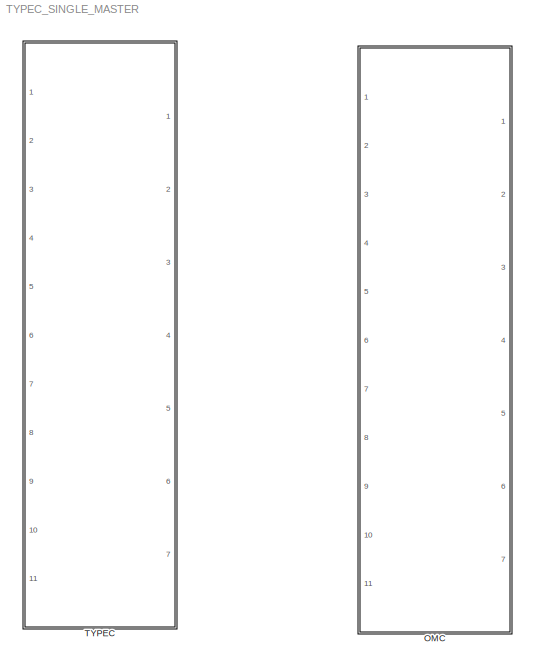
MODEL TYPEC_SINGLE_MASTER
KIND library
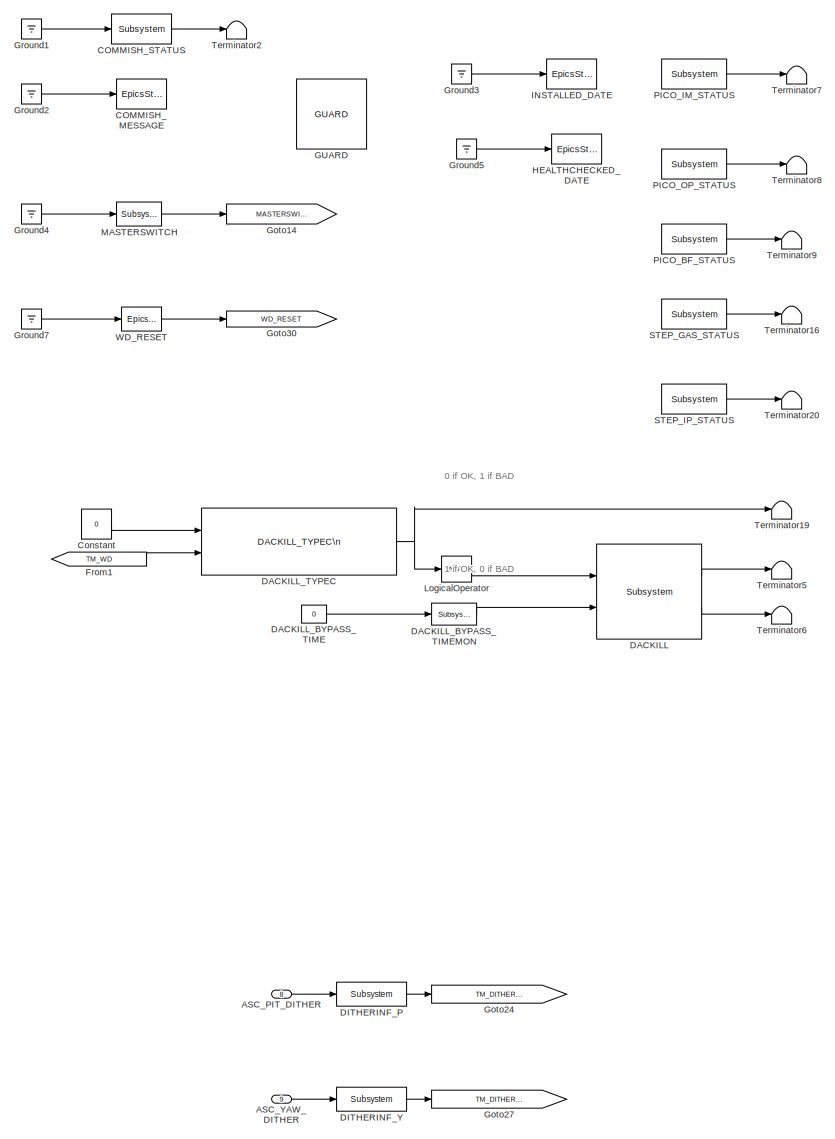
[diagram: OMC - part 1/2, right side, full height]
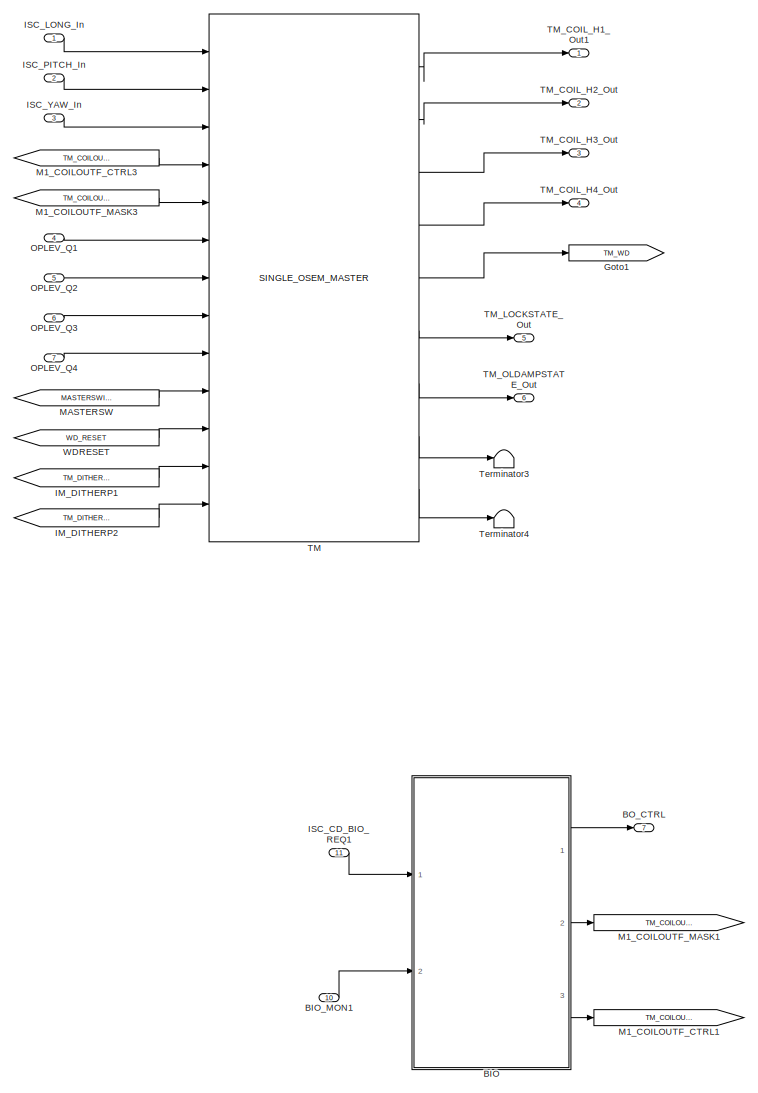
[diagram: OMC - part 2/2, left side, full height]
BLOCK [SubSystem] OMC
  AttributesFormatString = %<Description>
  Description = TYPEC SINGLE MASTER
  Ports = [11, 7]
  RequestExecContextInheritance = off
  SID = 120
  Variant = off
BLOCK [Inport] OMC/ASC_PIT_DITHER
  IconDisplay = Port number
  Port = 8
  SID = 128
BLOCK [Inport] OMC/ASC_YAW_DITHER
  IconDisplay = Port number
  Port = 9
  SID = 129
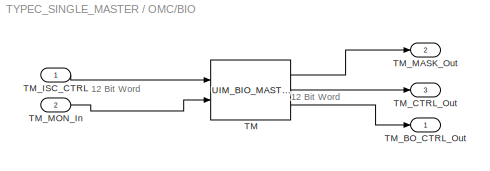
BLOCK [SubSystem] OMC/BIO
  Ports = [2, 3]
  RequestExecContextInheritance = off
  SID = 132
  Variant = off
BLOCK [Reference] OMC/BIO/TM  REF=STATE_BIO_MASTER/UIM_BIO_MASTER
  Ports = [2, 3]
  SID = 135
  SourceBlock = STATE_BIO_MASTER/UIM_BIO_MASTER
  SourceType = SubSystem
BLOCK [Outport] OMC/BIO/TM_BO_CTRL_Out
  IconDisplay = Port number
  SID = 136
BLOCK [Outport] OMC/BIO/TM_CTRL_Out
  IconDisplay = Port number
  Port = 3
  SID = 138
BLOCK [Inport] OMC/BIO/TM_ISC_CTRL
  IconDisplay = Port number
  SID = 133
BLOCK [Outport] OMC/BIO/TM_MASK_Out
  IconDisplay = Port number
  Port = 2
  SID = 137
BLOCK [Inport] OMC/BIO/TM_MON_In
  IconDisplay = Port number
  Port = 2
  SID = 134
BLOCK [Inport] OMC/BIO_MON1
  IconDisplay = Port number
  Port = 10
  SID = 130
BLOCK [Outport] OMC/BO_CTRL
  IconDisplay = Port number
  Port = 7
  SID = 199
BLOCK [Reference] OMC/COMMISH_MESSAGE  REF=cdsEpicsStringIn/EpicsStringIn
  AttributesFormatString = %<Tag>
  Description = cdsEpicsStringIn
  Ports = [1]
  SID = 141
  SourceBlock = cdsEpicsStringIn/EpicsStringIn
  SourceType = SubSystem
  Tag = cdsEpicsStringIn
BLOCK [Reference] OMC/COMMISH_STATUS  REF=cdsEpicsBinIn/Subsystem
  AttributesFormatString = %<Tag>
  Description = Purpose:                                                                            \nCreate an EPICS binary (0 or 1) input channel to the FE realtime controls.          \n                                                                                    \nOperation:                                                                          \nOutputs value from an EPICS ai record. Value is binary i...<+252ch>  <repeated x4 — deduplicated; at blocks: COMMISH_STATUS, MASTERSWITCH>
  Ports = [1, 1]
  SID = 142
  SourceBlock = cdsEpicsBinIn/Subsystem
  SourceType = SubSystem
  Tag = cdsEpicsBinIn
BLOCK [Constant] OMC/Constant
  SID = 143
  Value = 0
BLOCK [Reference] OMC/DACKILL  REF=cdsDacKill/Subsystem
  AttributesFormatString = %<Description>
  Description = cdsDacKill
  Ports = [2, 2]
  SID = 144
  SourceBlock = cdsDacKill/Subsystem
  SourceType = SubSystem
BLOCK [Constant] OMC/DACKILL_BYPASS_TIME
  SID = 145
  Value = 0
BLOCK [Reference] OMC/DACKILL_BYPASS_TIMEMON  REF=cdsEpicsOut/Subsystem
  AttributesFormatString = %<Tag>
  Description = Purpose:                                          \nOutput a FE signal to an EPICS channel.           \n                                                  \nOperation:                                        \nTakes input value and passes it to EPICS record.  \n                                                  \nUsage:                                            \nName the part with the desired EPICS...<+14ch>
  Ports = [1, 1]
  SID = 146
  SourceBlock = cdsEpicsOut/Subsystem
  SourceType = SubSystem
  Tag = cdsEpicsOutput
BLOCK [Reference] OMC/DACKILL_TYPEC  REF=VIS_LIB/DACKILL_TYPEC\n
  Ports = [2, 1]
  SID = 147
  SourceBlock = VIS_LIB/DACKILL_TYPEC\n
  SourceType = SubSystem
BLOCK [Reference] OMC/DITHERINF_P  REF=cdsFilt/Subsystem
  AttributesFormatString = %<Tag>
  Description = Purpose:                                                                                                                                                                                                                                  \nStandard CDS IIR filter module.                                                                                                                                     ...<+1302ch>  <repeated x4 — deduplicated; at blocks: DITHERINF_P, DITHERINF_Y>
  Ports = [1, 1]
  SID = 148
  SourceBlock = cdsFilt/Subsystem
  SourceType = SubSystem
  Tag = cdsFilt
BLOCK [Reference] OMC/DITHERINF_Y  REF=cdsFilt/Subsystem
  AttributesFormatString = %<Tag>
  Ports = [1, 1]
  SID = 149
  SourceBlock = cdsFilt/Subsystem
  SourceType = SubSystem
  Tag = cdsFilt
BLOCK [From] OMC/From1
  CloseFcn = tagdialog Close
  GotoTag = TM_WD
  SID = 150
BLOCK [Reference] OMC/GUARD  REF=ISC_common/GUARD
  Ports = []
  SID = 151
  SourceBlock = ISC_common/GUARD
  SourceType = SubSystem
BLOCK [Goto] OMC/Goto1
  GotoTag = TM_WD
  SID = 152
BLOCK [Goto] OMC/Goto14
  GotoTag = MASTERSWITCH
  SID = 153
BLOCK [Goto] OMC/Goto24
  GotoTag = TM_DITHER_PIT
  SID = 154
BLOCK [Goto] OMC/Goto27
  GotoTag = TM_DITHER_YAW
  SID = 155
BLOCK [Goto] OMC/Goto30
  GotoTag = WD_RESET
  SID = 156
BLOCK [Ground] OMC/Ground1
  SID = 157
BLOCK [Ground] OMC/Ground2
  SID = 158
BLOCK [Ground] OMC/Ground3
  SID = 159
BLOCK [Ground] OMC/Ground4
  SID = 160
BLOCK [Ground] OMC/Ground5
  SID = 161
BLOCK [Ground] OMC/Ground7
  SID = 162
BLOCK [Reference] OMC/HEALTHCHECKED_DATE  REF=cdsEpicsStringIn/EpicsStringIn
  AttributesFormatString = %<Tag>
  Description = cdsEpicsStringIn
  Ports = [1]
  SID = 163
  SourceBlock = cdsEpicsStringIn/EpicsStringIn
  SourceType = SubSystem
  Tag = cdsEpicsStringIn
BLOCK [From] OMC/IM_DITHERP1
  CloseFcn = tagdialog Close
  GotoTag = TM_DITHER_PIT
  SID = 164
BLOCK [From] OMC/IM_DITHERP2
  CloseFcn = tagdialog Close
  GotoTag = TM_DITHER_YAW
  SID = 165
BLOCK [Reference] OMC/INSTALLED_DATE  REF=cdsEpicsStringIn/EpicsStringIn
  AttributesFormatString = %<Tag>
  Description = cdsEpicsStringIn
  Ports = [1]
  SID = 166
  SourceBlock = cdsEpicsStringIn/EpicsStringIn
  SourceType = SubSystem
  Tag = cdsEpicsStringIn
BLOCK [Inport] OMC/ISC_CD_BIO_REQ1
  IconDisplay = Port number
  Port = 11
  SID = 131
BLOCK [Inport] OMC/ISC_LONG_In
  IconDisplay = Port number
  SID = 121
BLOCK [Inport] OMC/ISC_PITCH_In
  IconDisplay = Port number
  Port = 2
  SID = 122
BLOCK [Inport] OMC/ISC_YAW_In
  IconDisplay = Port number
  Port = 3
  SID = 123
BLOCK [Logic] OMC/LogicalOperator
  AllPortsSameDT = off
  Operator = NOT
  OutDataTypeStr = boolean
  Ports = [1, 1]
  SID = 167
BLOCK [Goto] OMC/M1_COILOUTF_CTRL1
  GotoTag = TM_COILOUTF_CTRL
  SID = 168
BLOCK [From] OMC/M1_COILOUTF_CTRL3
  CloseFcn = tagdialog Close
  GotoTag = TM_COILOUTF_CTRL
  SID = 169
BLOCK [Goto] OMC/M1_COILOUTF_MASK1
  GotoTag = TM_COILOUTF_MASK
  SID = 170
BLOCK [From] OMC/M1_COILOUTF_MASK3
  CloseFcn = tagdialog Close
  GotoTag = TM_COILOUTF_MASK
  SID = 171
BLOCK [From] OMC/MASTERSW
  CloseFcn = tagdialog Close
  GotoTag = MASTERSWITCH
  SID = 172
BLOCK [Reference] OMC/MASTERSWITCH  REF=cdsEpicsBinIn/Subsystem
  AttributesFormatString = %<Tag>
  Ports = [1, 1]
  SID = 173
  SourceBlock = cdsEpicsBinIn/Subsystem
  SourceType = SubSystem
  Tag = cdsEpicsBinIn
BLOCK [Inport] OMC/OPLEV_Q1
  IconDisplay = Port number
  Port = 4
  SID = 124
BLOCK [Inport] OMC/OPLEV_Q2
  IconDisplay = Port number
  Port = 5
  SID = 125
BLOCK [Inport] OMC/OPLEV_Q3
  IconDisplay = Port number
  Port = 6
  SID = 126
BLOCK [Inport] OMC/OPLEV_Q4
  IconDisplay = Port number
  Port = 7
  SID = 127
BLOCK [Reference] OMC/PICO_BF_STATUS  REF=cdsEpicsIn/Subsystem
  AttributesFormatString = %<Tag>
  Description = Purpose:                                                                              \nCreate an EPICS input channel connection to the FE realtime controls.                 \n                                                                                      \nOperation:                                                                            \nOutputs value from an EPICS ai record. Value is ...<+266ch>  <repeated x10 — deduplicated; at blocks: PICO_BF_STATUS, PICO_IM_STATUS, PICO_OP_STATUS, STEP_GAS_STATUS, STEP_IP_STATUS>
  Ports = [0, 1]
  SID = 174
  SourceBlock = cdsEpicsIn/Subsystem
  SourceType = SubSystem
  Tag = cdsEpicsIn
BLOCK [Reference] OMC/PICO_IM_STATUS  REF=cdsEpicsIn/Subsystem
  AttributesFormatString = %<Tag>
  Ports = [0, 1]
  SID = 175
  SourceBlock = cdsEpicsIn/Subsystem
  SourceType = SubSystem
  Tag = cdsEpicsIn
BLOCK [Reference] OMC/PICO_OP_STATUS  REF=cdsEpicsIn/Subsystem
  AttributesFormatString = %<Tag>
  Ports = [0, 1]
  SID = 176
  SourceBlock = cdsEpicsIn/Subsystem
  SourceType = SubSystem
  Tag = cdsEpicsIn
BLOCK [Reference] OMC/STEP_GAS_STATUS  REF=cdsEpicsIn/Subsystem
  AttributesFormatString = %<Tag>
  Ports = [0, 1]
  SID = 177
  SourceBlock = cdsEpicsIn/Subsystem
  SourceType = SubSystem
  Tag = cdsEpicsIn
BLOCK [Reference] OMC/STEP_IP_STATUS  REF=cdsEpicsIn/Subsystem
  AttributesFormatString = %<Tag>
  Ports = [0, 1]
  SID = 178
  SourceBlock = cdsEpicsIn/Subsystem
  SourceType = SubSystem
  Tag = cdsEpicsIn
BLOCK [Reference] OMC/TM  REF=SINGLE_OPLEV_NOOSEM_MASTER/SINGLE_OSEM_MASTER
  Ports = [13, 9]
  SID = 203
  SourceBlock = SINGLE_OPLEV_NOOSEM_MASTER/SINGLE_OSEM_MASTER
  SourceType = SubSystem
BLOCK [Outport] OMC/TM_COIL_H1_Out1
  IconDisplay = Port number
  SID = 193
BLOCK [Outport] OMC/TM_COIL_H2_Out
  IconDisplay = Port number
  Port = 2
  SID = 194
BLOCK [Outport] OMC/TM_COIL_H3_Out
  IconDisplay = Port number
  Port = 3
  SID = 195
BLOCK [Outport] OMC/TM_COIL_H4_Out
  IconDisplay = Port number
  Port = 4
  SID = 196
BLOCK [Outport] OMC/TM_LOCKSTATE_Out
  IconDisplay = Port number
  Port = 5
  SID = 197
BLOCK [Outport] OMC/TM_OLDAMPSTATE_Out
  IconDisplay = Port number
  Port = 6
  SID = 198
BLOCK [Terminator] OMC/Terminator16
  SID = 180
BLOCK [Terminator] OMC/Terminator19
  SID = 181
BLOCK [Terminator] OMC/Terminator2
  SID = 182
BLOCK [Terminator] OMC/Terminator20
  SID = 183
BLOCK [Terminator] OMC/Terminator3
  SID = 184
BLOCK [Terminator] OMC/Terminator4
  SID = 185
BLOCK [Terminator] OMC/Terminator5
  SID = 186
BLOCK [Terminator] OMC/Terminator6
  SID = 187
BLOCK [Terminator] OMC/Terminator7
  SID = 188
BLOCK [Terminator] OMC/Terminator8
  SID = 189
BLOCK [Terminator] OMC/Terminator9
  SID = 190
BLOCK [From] OMC/WDRESET
  CloseFcn = tagdialog Close
  GotoTag = WD_RESET
  SID = 191
BLOCK [Reference] OMC/WD_RESET  REF=cdsEpicsMomentary/EpicsMomentary
  AttributesFormatString = %<Tag>
  Ports = [1, 1]
  SID = 192
  SourceBlock = cdsEpicsMomentary/EpicsMomentary
  SourceType = SubSystem
  Tag = cdsEpicsMomentary
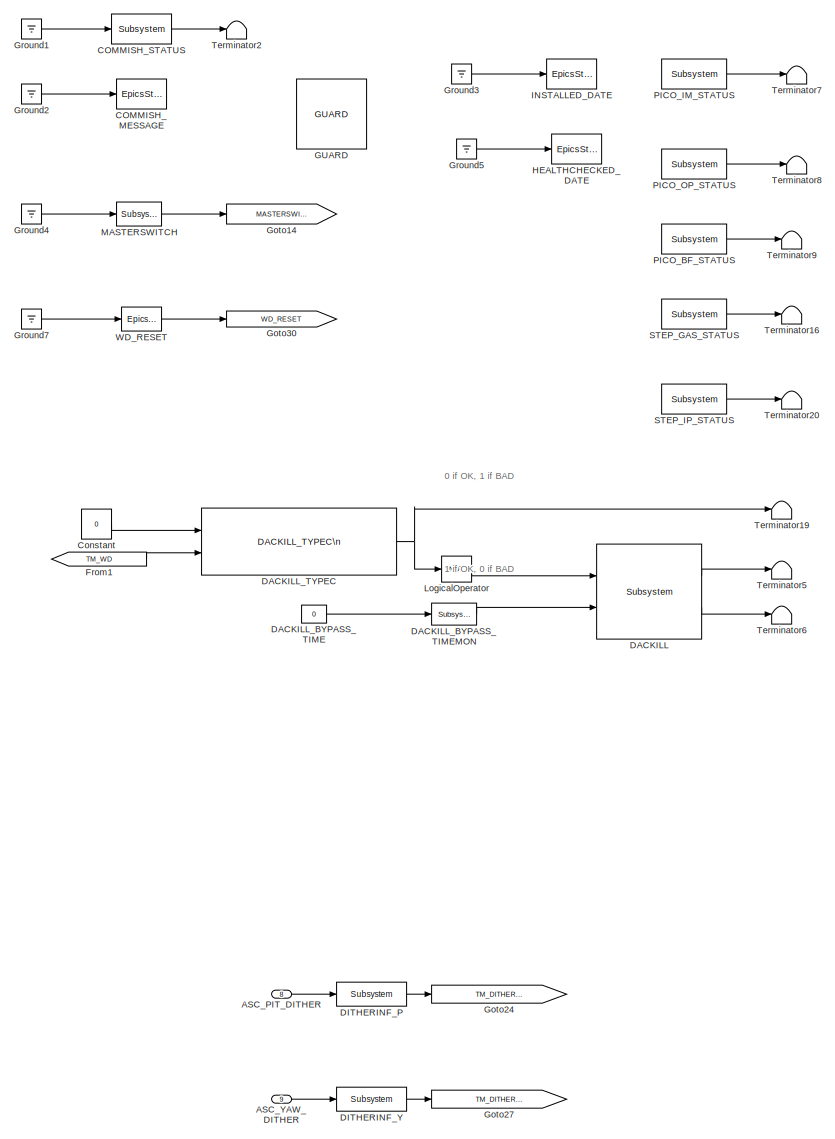
[diagram: TYPEC - part 1/2, right side, full height]
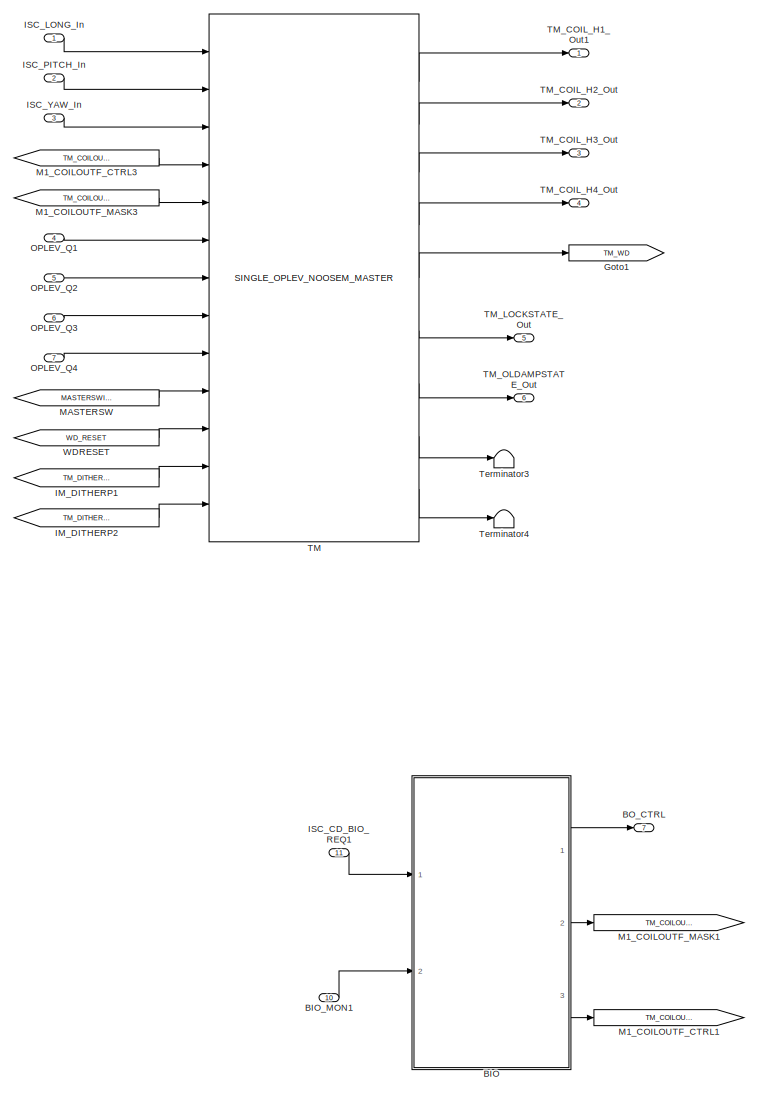
[diagram: TYPEC - part 2/2, left side, full height]
BLOCK [SubSystem] TYPEC
  AttributesFormatString = %<Description>
  Description = TYPEC SINGLE MASTER
  Ports = [11, 7]
  RequestExecContextInheritance = off
  SID = 1
  Variant = off
BLOCK [Inport] TYPEC/ASC_PIT_DITHER
  IconDisplay = Port number
  Port = 8
  SID = 15
BLOCK [Inport] TYPEC/ASC_YAW_DITHER
  IconDisplay = Port number
  Port = 9
  SID = 16
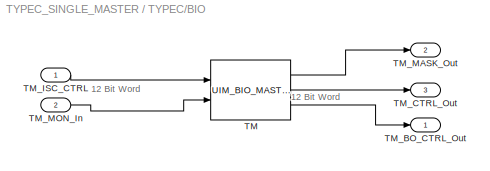
BLOCK [SubSystem] TYPEC/BIO
  Ports = [2, 3]
  RequestExecContextInheritance = off
  SID = 19
  Variant = off
BLOCK [Reference] TYPEC/BIO/TM  REF=STATE_BIO_MASTER/UIM_BIO_MASTER
  Ports = [2, 3]
  SID = 105
  SourceBlock = STATE_BIO_MASTER/UIM_BIO_MASTER
  SourceType = SubSystem
BLOCK [Outport] TYPEC/BIO/TM_BO_CTRL_Out
  IconDisplay = Port number
  SID = 29
BLOCK [Outport] TYPEC/BIO/TM_CTRL_Out
  IconDisplay = Port number
  Port = 3
  SID = 31
BLOCK [Inport] TYPEC/BIO/TM_ISC_CTRL
  IconDisplay = Port number
  SID = 22
BLOCK [Outport] TYPEC/BIO/TM_MASK_Out
  IconDisplay = Port number
  Port = 2
  SID = 30
BLOCK [Inport] TYPEC/BIO/TM_MON_In
  IconDisplay = Port number
  Port = 2
  SID = 23
BLOCK [Inport] TYPEC/BIO_MON1
  IconDisplay = Port number
  Port = 10
  SID = 17
BLOCK [Outport] TYPEC/BO_CTRL
  IconDisplay = Port number
  Port = 7
  SID = 104
BLOCK [Reference] TYPEC/COMMISH_MESSAGE  REF=cdsEpicsStringIn/EpicsStringIn
  AttributesFormatString = %<Tag>
  Description = cdsEpicsStringIn
  Ports = [1]
  SID = 36
  SourceBlock = cdsEpicsStringIn/EpicsStringIn
  SourceType = SubSystem
  Tag = cdsEpicsStringIn
BLOCK [Reference] TYPEC/COMMISH_STATUS  REF=cdsEpicsBinIn/Subsystem
  AttributesFormatString = %<Tag>
  Ports = [1, 1]
  SID = 37
  SourceBlock = cdsEpicsBinIn/Subsystem
  SourceType = SubSystem
  Tag = cdsEpicsBinIn
BLOCK [Constant] TYPEC/Constant
  SID = 38
  Value = 0
BLOCK [Reference] TYPEC/DACKILL  REF=cdsDacKill/Subsystem
  AttributesFormatString = %<Description>
  Description = cdsDacKill
  Ports = [2, 2]
  SID = 39
  SourceBlock = cdsDacKill/Subsystem
  SourceType = SubSystem
BLOCK [Constant] TYPEC/DACKILL_BYPASS_TIME
  SID = 40
  Value = 0
BLOCK [Reference] TYPEC/DACKILL_BYPASS_TIMEMON  REF=cdsEpicsOut/Subsystem
  AttributesFormatString = %<Tag>
  Description = Purpose:                                          \nOutput a FE signal to an EPICS channel.           \n                                                  \nOperation:                                        \nTakes input value and passes it to EPICS record.  \n                                                  \nUsage:                                            \nName the part with the desired EPICS...<+14ch>
  Ports = [1, 1]
  SID = 41
  SourceBlock = cdsEpicsOut/Subsystem
  SourceType = SubSystem
  Tag = cdsEpicsOutput
BLOCK [Reference] TYPEC/DACKILL_TYPEC  REF=VIS_LIB/DACKILL_TYPEC\n
  Ports = [2, 1]
  SID = 97
  SourceBlock = VIS_LIB/DACKILL_TYPEC\n
  SourceType = SubSystem
BLOCK [Reference] TYPEC/DITHERINF_P  REF=cdsFilt/Subsystem
  AttributesFormatString = %<Tag>
  Ports = [1, 1]
  SID = 43
  SourceBlock = cdsFilt/Subsystem
  SourceType = SubSystem
  Tag = cdsFilt
BLOCK [Reference] TYPEC/DITHERINF_Y  REF=cdsFilt/Subsystem
  AttributesFormatString = %<Tag>
  Ports = [1, 1]
  SID = 44
  SourceBlock = cdsFilt/Subsystem
  SourceType = SubSystem
  Tag = cdsFilt
BLOCK [From] TYPEC/From1
  CloseFcn = tagdialog Close
  GotoTag = TM_WD
  SID = 49
BLOCK [Reference] TYPEC/GUARD  REF=ISC_common/GUARD
  Ports = []
  SID = 51
  SourceBlock = ISC_common/GUARD
  SourceType = SubSystem
BLOCK [Goto] TYPEC/Goto1
  GotoTag = TM_WD
  SID = 52
BLOCK [Goto] TYPEC/Goto14
  GotoTag = MASTERSWITCH
  SID = 53
BLOCK [Goto] TYPEC/Goto24
  GotoTag = TM_DITHER_PIT
  SID = 55
BLOCK [Goto] TYPEC/Goto27
  GotoTag = TM_DITHER_YAW
  SID = 57
BLOCK [Goto] TYPEC/Goto30
  GotoTag = WD_RESET
  SID = 59
BLOCK [Ground] TYPEC/Ground1
  SID = 61
BLOCK [Ground] TYPEC/Ground2
  SID = 62
BLOCK [Ground] TYPEC/Ground3
  SID = 107
BLOCK [Ground] TYPEC/Ground4
  SID = 63
BLOCK [Ground] TYPEC/Ground5
  SID = 108
BLOCK [Ground] TYPEC/Ground7
  SID = 64
BLOCK [Reference] TYPEC/HEALTHCHECKED_DATE  REF=cdsEpicsStringIn/EpicsStringIn
  AttributesFormatString = %<Tag>
  Description = cdsEpicsStringIn
  Ports = [1]
  SID = 109
  SourceBlock = cdsEpicsStringIn/EpicsStringIn
  SourceType = SubSystem
  Tag = cdsEpicsStringIn
BLOCK [From] TYPEC/IM_DITHERP1
  CloseFcn = tagdialog Close
  GotoTag = TM_DITHER_PIT
  SID = 65
BLOCK [From] TYPEC/IM_DITHERP2
  CloseFcn = tagdialog Close
  GotoTag = TM_DITHER_YAW
  SID = 66
BLOCK [Reference] TYPEC/INSTALLED_DATE  REF=cdsEpicsStringIn/EpicsStringIn
  AttributesFormatString = %<Tag>
  Description = cdsEpicsStringIn
  Ports = [1]
  SID = 106
  SourceBlock = cdsEpicsStringIn/EpicsStringIn
  SourceType = SubSystem
  Tag = cdsEpicsStringIn
BLOCK [Inport] TYPEC/ISC_CD_BIO_REQ1
  IconDisplay = Port number
  Port = 11
  SID = 18
BLOCK [Inport] TYPEC/ISC_LONG_In
  IconDisplay = Port number
  SID = 6
BLOCK [Inport] TYPEC/ISC_PITCH_In
  IconDisplay = Port number
  Port = 2
  SID = 7
BLOCK [Inport] TYPEC/ISC_YAW_In
  IconDisplay = Port number
  Port = 3
  SID = 8
BLOCK [Logic] TYPEC/LogicalOperator
  AllPortsSameDT = off
  Operator = NOT
  OutDataTypeStr = boolean
  Ports = [1, 1]
  SID = 67
BLOCK [Goto] TYPEC/M1_COILOUTF_CTRL1
  GotoTag = TM_COILOUTF_CTRL
  SID = 69
BLOCK [From] TYPEC/M1_COILOUTF_CTRL3
  CloseFcn = tagdialog Close
  GotoTag = TM_COILOUTF_CTRL
  SID = 70
BLOCK [Goto] TYPEC/M1_COILOUTF_MASK1
  GotoTag = TM_COILOUTF_MASK
  SID = 72
BLOCK [From] TYPEC/M1_COILOUTF_MASK3
  CloseFcn = tagdialog Close
  GotoTag = TM_COILOUTF_MASK
  SID = 73
BLOCK [From] TYPEC/MASTERSW
  CloseFcn = tagdialog Close
  GotoTag = MASTERSWITCH
  SID = 74
BLOCK [Reference] TYPEC/MASTERSWITCH  REF=cdsEpicsBinIn/Subsystem
  AttributesFormatString = %<Tag>
  Ports = [1, 1]
  SID = 75
  SourceBlock = cdsEpicsBinIn/Subsystem
  SourceType = SubSystem
  Tag = cdsEpicsBinIn
BLOCK [Inport] TYPEC/OPLEV_Q1
  IconDisplay = Port number
  Port = 4
  SID = 9
BLOCK [Inport] TYPEC/OPLEV_Q2
  IconDisplay = Port number
  Port = 5
  SID = 10
BLOCK [Inport] TYPEC/OPLEV_Q3
  IconDisplay = Port number
  Port = 6
  SID = 11
BLOCK [Inport] TYPEC/OPLEV_Q4
  IconDisplay = Port number
  Port = 7
  SID = 12
BLOCK [Reference] TYPEC/PICO_BF_STATUS  REF=cdsEpicsIn/Subsystem
  AttributesFormatString = %<Tag>
  Ports = [0, 1]
  SID = 110
  SourceBlock = cdsEpicsIn/Subsystem
  SourceType = SubSystem
  Tag = cdsEpicsIn
BLOCK [Reference] TYPEC/PICO_IM_STATUS  REF=cdsEpicsIn/Subsystem
  AttributesFormatString = %<Tag>
  Ports = [0, 1]
  SID = 111
  SourceBlock = cdsEpicsIn/Subsystem
  SourceType = SubSystem
  Tag = cdsEpicsIn
BLOCK [Reference] TYPEC/PICO_OP_STATUS  REF=cdsEpicsIn/Subsystem
  AttributesFormatString = %<Tag>
  Ports = [0, 1]
  SID = 112
  SourceBlock = cdsEpicsIn/Subsystem
  SourceType = SubSystem
  Tag = cdsEpicsIn
BLOCK [Reference] TYPEC/STEP_GAS_STATUS  REF=cdsEpicsIn/Subsystem
  AttributesFormatString = %<Tag>
  Ports = [0, 1]
  SID = 113
  SourceBlock = cdsEpicsIn/Subsystem
  SourceType = SubSystem
  Tag = cdsEpicsIn
BLOCK [Reference] TYPEC/STEP_IP_STATUS  REF=cdsEpicsIn/Subsystem
  AttributesFormatString = %<Tag>
  Ports = [0, 1]
  SID = 114
  SourceBlock = cdsEpicsIn/Subsystem
  SourceType = SubSystem
  Tag = cdsEpicsIn
BLOCK [Reference] TYPEC/TM  REF=SINGLE_OPLEV_NOOSEM_MASTER/SINGLE_OPLEV_NOOSEM_MASTER
  Ports = [13, 9]
  SID = 96
  SourceBlock = SINGLE_OPLEV_NOOSEM_MASTER/SINGLE_OPLEV_NOOSEM_MASTER
  SourceType = SubSystem
BLOCK [Outport] TYPEC/TM_COIL_H1_Out1
  IconDisplay = Port number
  SID = 85
BLOCK [Outport] TYPEC/TM_COIL_H2_Out
  IconDisplay = Port number
  Port = 2
  SID = 86
BLOCK [Outport] TYPEC/TM_COIL_H3_Out
  IconDisplay = Port number
  Port = 3
  SID = 87
BLOCK [Outport] TYPEC/TM_COIL_H4_Out
  IconDisplay = Port number
  Port = 4
  SID = 88
BLOCK [Outport] TYPEC/TM_LOCKSTATE_Out
  IconDisplay = Port number
  Port = 5
  SID = 90
BLOCK [Outport] TYPEC/TM_OLDAMPSTATE_Out
  IconDisplay = Port number
  Port = 6
  SID = 91
BLOCK [Terminator] TYPEC/Terminator16
  SID = 115
BLOCK [Terminator] TYPEC/Terminator19
  SID = 79
BLOCK [Terminator] TYPEC/Terminator2
  SID = 80
BLOCK [Terminator] TYPEC/Terminator20
  SID = 116
BLOCK [Terminator] TYPEC/Terminator3
  SID = 99
BLOCK [Terminator] TYPEC/Terminator4
  SID = 100
BLOCK [Terminator] TYPEC/Terminator5
  SID = 81
BLOCK [Terminator] TYPEC/Terminator6
  SID = 82
BLOCK [Terminator] TYPEC/Terminator7
  SID = 117
BLOCK [Terminator] TYPEC/Terminator8
  SID = 118
BLOCK [Terminator] TYPEC/Terminator9
  SID = 119
BLOCK [From] TYPEC/WDRESET
  CloseFcn = tagdialog Close
  GotoTag = WD_RESET
  SID = 83
BLOCK [Reference] TYPEC/WD_RESET  REF=cdsEpicsMomentary/EpicsMomentary
  AttributesFormatString = %<Tag>
  Ports = [1, 1]
  SID = 84
  SourceBlock = cdsEpicsMomentary/EpicsMomentary
  SourceType = SubSystem
  Tag = cdsEpicsMomentary
ANNOTATION OMC: 0 if OK, 1 if BAD
ANNOTATION OMC: 1 if OK, 0 if BAD
ANNOTATION OMC/BIO: 12 Bit Word
ANNOTATION TYPEC: 0 if OK, 1 if BAD
ANNOTATION TYPEC: 1 if OK, 0 if BAD
ANNOTATION TYPEC/BIO: 12 Bit Word
LINE OMC/ASC_PIT_DITHER:1 -> OMC/DITHERINF_P:1
LINE OMC/ASC_YAW_DITHER:1 -> OMC/DITHERINF_Y:1
LINE OMC/BIO/TM:1 -> OMC/BIO/TM_MASK_Out:1
LINE OMC/BIO/TM:2 -> OMC/BIO/TM_CTRL_Out:1
LINE OMC/BIO/TM:3 -> OMC/BIO/TM_BO_CTRL_Out:1
LINE OMC/BIO/TM_ISC_CTRL:1 -> OMC/BIO/TM:1
LINE OMC/BIO/TM_MON_In:1 -> OMC/BIO/TM:2
LINE OMC/BIO:1 -> OMC/BO_CTRL:1
LINE OMC/BIO:2 -> OMC/M1_COILOUTF_MASK1:1
LINE OMC/BIO:3 -> OMC/M1_COILOUTF_CTRL1:1
LINE OMC/BIO_MON1:1 -> OMC/BIO:2
LINE OMC/COMMISH_STATUS:1 -> OMC/Terminator2:1
LINE OMC/Constant:1 -> OMC/DACKILL_TYPEC:1
LINE OMC/DACKILL:1 -> OMC/Terminator5:1
LINE OMC/DACKILL:2 -> OMC/Terminator6:1
LINE OMC/DACKILL_BYPASS_TIME:1 -> OMC/DACKILL_BYPASS_TIMEMON:1
LINE OMC/DACKILL_BYPASS_TIMEMON:1 -> OMC/DACKILL:2
NET OMC/DACKILL_TYPEC:1 -> OMC/LogicalOperator:1, OMC/Terminator19:1
LINE OMC/DITHERINF_P:1 -> OMC/Goto24:1
LINE OMC/DITHERINF_Y:1 -> OMC/Goto27:1
LINE OMC/From1:1 -> OMC/DACKILL_TYPEC:2
LINE OMC/Ground1:1 -> OMC/COMMISH_STATUS:1
LINE OMC/Ground2:1 -> OMC/COMMISH_MESSAGE:1
LINE OMC/Ground3:1 -> OMC/INSTALLED_DATE:1
LINE OMC/Ground4:1 -> OMC/MASTERSWITCH:1
LINE OMC/Ground5:1 -> OMC/HEALTHCHECKED_DATE:1
LINE OMC/Ground7:1 -> OMC/WD_RESET:1
LINE OMC/IM_DITHERP1:1 -> OMC/TM:12
LINE OMC/IM_DITHERP2:1 -> OMC/TM:13
LINE OMC/ISC_CD_BIO_REQ1:1 -> OMC/BIO:1
LINE OMC/ISC_LONG_In:1 -> OMC/TM:1
LINE OMC/ISC_PITCH_In:1 -> OMC/TM:2
LINE OMC/ISC_YAW_In:1 -> OMC/TM:3
LINE OMC/LogicalOperator:1 -> OMC/DACKILL:1
LINE OMC/M1_COILOUTF_CTRL3:1 -> OMC/TM:4
LINE OMC/M1_COILOUTF_MASK3:1 -> OMC/TM:5
LINE OMC/MASTERSW:1 -> OMC/TM:10
LINE OMC/MASTERSWITCH:1 -> OMC/Goto14:1
LINE OMC/OPLEV_Q1:1 -> OMC/TM:6
LINE OMC/OPLEV_Q2:1 -> OMC/TM:7
LINE OMC/OPLEV_Q3:1 -> OMC/TM:8
LINE OMC/OPLEV_Q4:1 -> OMC/TM:9
LINE OMC/PICO_BF_STATUS:1 -> OMC/Terminator9:1
LINE OMC/PICO_IM_STATUS:1 -> OMC/Terminator7:1
LINE OMC/PICO_OP_STATUS:1 -> OMC/Terminator8:1
LINE OMC/STEP_GAS_STATUS:1 -> OMC/Terminator16:1
LINE OMC/STEP_IP_STATUS:1 -> OMC/Terminator20:1
LINE OMC/TM:1 -> OMC/TM_COIL_H1_Out1:1
LINE OMC/TM:2 -> OMC/TM_COIL_H2_Out:1
LINE OMC/TM:3 -> OMC/TM_COIL_H3_Out:1
LINE OMC/TM:4 -> OMC/TM_COIL_H4_Out:1
LINE OMC/TM:5 -> OMC/Goto1:1
LINE OMC/TM:6 -> OMC/TM_LOCKSTATE_Out:1
LINE OMC/TM:7 -> OMC/TM_OLDAMPSTATE_Out:1
LINE OMC/TM:8 -> OMC/Terminator3:1
LINE OMC/TM:9 -> OMC/Terminator4:1
LINE OMC/WDRESET:1 -> OMC/TM:11
LINE OMC/WD_RESET:1 -> OMC/Goto30:1
LINE TYPEC/ASC_PIT_DITHER:1 -> TYPEC/DITHERINF_P:1
LINE TYPEC/ASC_YAW_DITHER:1 -> TYPEC/DITHERINF_Y:1
LINE TYPEC/BIO/TM:1 -> TYPEC/BIO/TM_MASK_Out:1
LINE TYPEC/BIO/TM:2 -> TYPEC/BIO/TM_CTRL_Out:1
LINE TYPEC/BIO/TM:3 -> TYPEC/BIO/TM_BO_CTRL_Out:1
LINE TYPEC/BIO/TM_ISC_CTRL:1 -> TYPEC/BIO/TM:1
LINE TYPEC/BIO/TM_MON_In:1 -> TYPEC/BIO/TM:2
LINE TYPEC/BIO:1 -> TYPEC/BO_CTRL:1
LINE TYPEC/BIO:2 -> TYPEC/M1_COILOUTF_MASK1:1
LINE TYPEC/BIO:3 -> TYPEC/M1_COILOUTF_CTRL1:1
LINE TYPEC/BIO_MON1:1 -> TYPEC/BIO:2
LINE TYPEC/COMMISH_STATUS:1 -> TYPEC/Terminator2:1
LINE TYPEC/Constant:1 -> TYPEC/DACKILL_TYPEC:1
LINE TYPEC/DACKILL:1 -> TYPEC/Terminator5:1
LINE TYPEC/DACKILL:2 -> TYPEC/Terminator6:1
LINE TYPEC/DACKILL_BYPASS_TIME:1 -> TYPEC/DACKILL_BYPASS_TIMEMON:1
LINE TYPEC/DACKILL_BYPASS_TIMEMON:1 -> TYPEC/DACKILL:2
NET TYPEC/DACKILL_TYPEC:1 -> TYPEC/LogicalOperator:1, TYPEC/Terminator19:1
LINE TYPEC/DITHERINF_P:1 -> TYPEC/Goto24:1
LINE TYPEC/DITHERINF_Y:1 -> TYPEC/Goto27:1
LINE TYPEC/From1:1 -> TYPEC/DACKILL_TYPEC:2
LINE TYPEC/Ground1:1 -> TYPEC/COMMISH_STATUS:1
LINE TYPEC/Ground2:1 -> TYPEC/COMMISH_MESSAGE:1
LINE TYPEC/Ground3:1 -> TYPEC/INSTALLED_DATE:1
LINE TYPEC/Ground4:1 -> TYPEC/MASTERSWITCH:1
LINE TYPEC/Ground5:1 -> TYPEC/HEALTHCHECKED_DATE:1
LINE TYPEC/Ground7:1 -> TYPEC/WD_RESET:1
LINE TYPEC/IM_DITHERP1:1 -> TYPEC/TM:12
LINE TYPEC/IM_DITHERP2:1 -> TYPEC/TM:13
LINE TYPEC/ISC_CD_BIO_REQ1:1 -> TYPEC/BIO:1
LINE TYPEC/ISC_LONG_In:1 -> TYPEC/TM:1
LINE TYPEC/ISC_PITCH_In:1 -> TYPEC/TM:2
LINE TYPEC/ISC_YAW_In:1 -> TYPEC/TM:3
LINE TYPEC/LogicalOperator:1 -> TYPEC/DACKILL:1
LINE TYPEC/M1_COILOUTF_CTRL3:1 -> TYPEC/TM:4
LINE TYPEC/M1_COILOUTF_MASK3:1 -> TYPEC/TM:5
LINE TYPEC/MASTERSW:1 -> TYPEC/TM:10
LINE TYPEC/MASTERSWITCH:1 -> TYPEC/Goto14:1
LINE TYPEC/OPLEV_Q1:1 -> TYPEC/TM:6
LINE TYPEC/OPLEV_Q2:1 -> TYPEC/TM:7
LINE TYPEC/OPLEV_Q3:1 -> TYPEC/TM:8
LINE TYPEC/OPLEV_Q4:1 -> TYPEC/TM:9
LINE TYPEC/PICO_BF_STATUS:1 -> TYPEC/Terminator9:1
LINE TYPEC/PICO_IM_STATUS:1 -> TYPEC/Terminator7:1
LINE TYPEC/PICO_OP_STATUS:1 -> TYPEC/Terminator8:1
LINE TYPEC/STEP_GAS_STATUS:1 -> TYPEC/Terminator16:1
LINE TYPEC/STEP_IP_STATUS:1 -> TYPEC/Terminator20:1
LINE TYPEC/TM:1 -> TYPEC/TM_COIL_H1_Out1:1
LINE TYPEC/TM:2 -> TYPEC/TM_COIL_H2_Out:1
LINE TYPEC/TM:3 -> TYPEC/TM_COIL_H3_Out:1
LINE TYPEC/TM:4 -> TYPEC/TM_COIL_H4_Out:1
LINE TYPEC/TM:5 -> TYPEC/Goto1:1
LINE TYPEC/TM:6 -> TYPEC/TM_LOCKSTATE_Out:1
LINE TYPEC/TM:7 -> TYPEC/TM_OLDAMPSTATE_Out:1
LINE TYPEC/TM:8 -> TYPEC/Terminator3:1
LINE TYPEC/TM:9 -> TYPEC/Terminator4:1
LINE TYPEC/WDRESET:1 -> TYPEC/TM:11
LINE TYPEC/WD_RESET:1 -> TYPEC/Goto30:1
note: NET lines group one-source signal fan-out (src -> all destinations, sorted); 1:1 wires keep LINE
